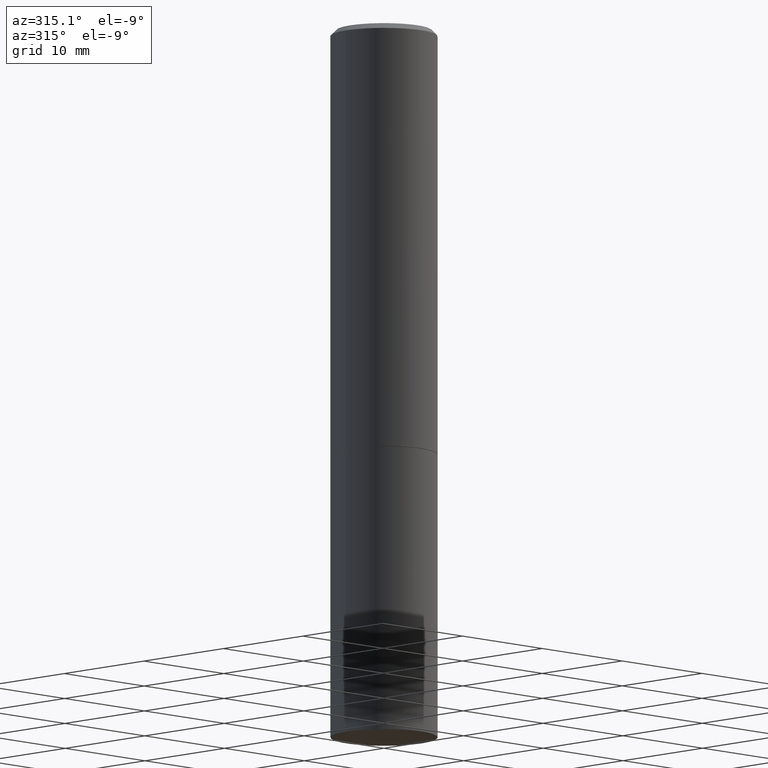
[diagram: clean part render]
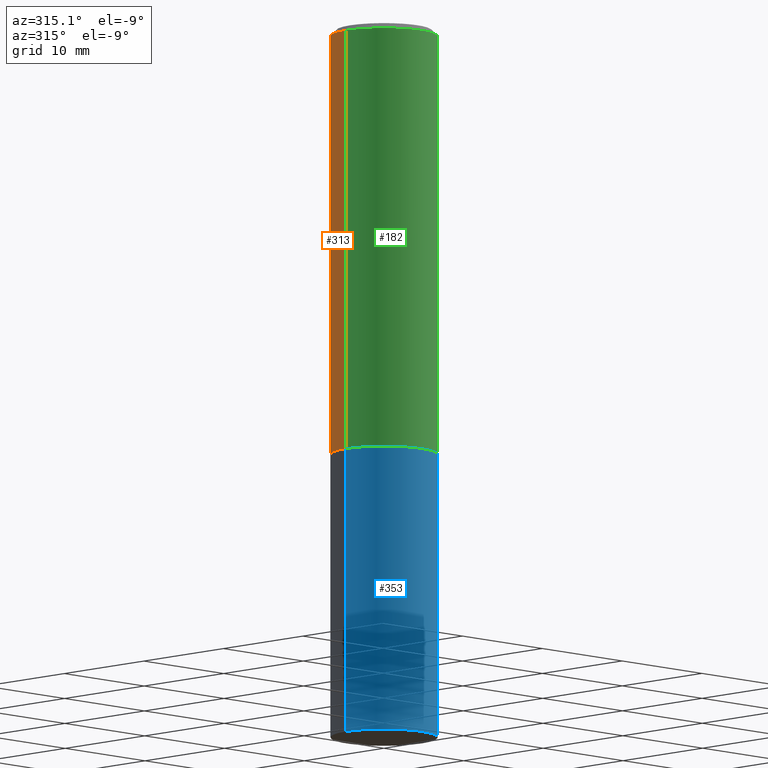
[diagram: same view with three faces highlighted in distinct colors, each labeled with its STEP entity id]
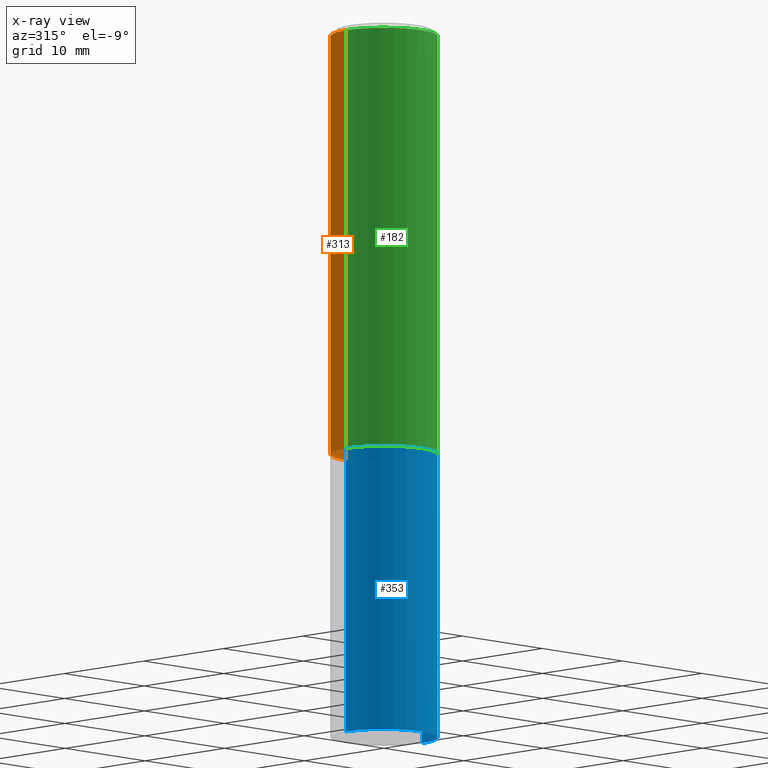
[diagram: x-ray of the same camera — body ghosted, the three highlighted faces saturated]
A machine part, auxiliary view with three faces highlighted in distinct colors.
The next image is the same camera in x-ray (body ghosted, the three faces saturated) — at least one of them is partly hidden behind the body in this view.
Their STEP definitions:

[orange] entity #313 — the highlighted cylindrical surface (partial cylindrical patch) has radius 4.7625 mm, axis along (-0, 0, 1).
#3 = EDGE_LOOP ( 'NONE', ( #309, #285, #302, #35 ) ) ;
#6 = CARTESIAN_POINT ( 'NONE',  ( 3.665757740471519853E-29, -5.233730526925875958E-15, -1.499000000000000110 ) ) ;
#17 = CARTESIAN_POINT ( 'NONE',  ( 0.000000000000000000, 0.000000000000000000, 0.000000000000000000 ) ) ;
#34 = EDGE_CURVE ( 'NONE', #147, #352, #159, .T. ) ;
#35 = ORIENTED_EDGE ( 'NONE', *, *, #172, .F. ) ;
#40 = CARTESIAN_POINT ( 'NONE',  ( -0.1874999999999998335, 1.239475875289310724E-15, -0.02000000000000004205 ) ) ;
#69 = VECTOR ( 'NONE', #273, 39.37007874015748143 ) ;
#133 = CARTESIAN_POINT ( 'NONE',  ( 4.890937612370283668E-31, -6.982962677686305168E-17, -0.02000000000000004205 ) ) ;
#136 = EDGE_CURVE ( 'NONE', #352, #141, #217, .T. ) ;
#141 = VERTEX_POINT ( 'NONE', #40 ) ;
#143 = AXIS2_PLACEMENT_3D ( 'NONE', #17, #168, #226 ) ;
#147 = VERTEX_POINT ( 'NONE', #295 ) ;
#159 = CIRCLE ( 'NONE', #359, 0.1875000000000000278 ) ;
#168 = DIRECTION ( 'NONE',  ( -2.445468806185136597E-29, 3.491481338843145583E-15, 1.000000000000000000 ) ) ;
#172 = EDGE_CURVE ( 'NONE', #147, #317, #189, .T. ) ;
#174 = DIRECTION ( 'NONE',  ( -2.445468806185136597E-29, 3.491481338843145583E-15, 1.000000000000000000 ) ) ;
#189 = LINE ( 'NONE', #293, #245 ) ;
#199 = CYLINDRICAL_SURFACE ( 'NONE', #143, 0.1874999999999999167 ) ;
#202 = CIRCLE ( 'NONE', #250, 0.1874999999999998335 ) ;
#211 = DIRECTION ( 'NONE',  ( 1.000000000000000000, -6.982962677686266711E-15, 0.000000000000000000 ) ) ;
#217 = LINE ( 'NONE', #327, #69 ) ;
#223 = EDGE_CURVE ( 'NONE', #317, #141, #202, .T. ) ;
#226 = DIRECTION ( 'NONE',  ( 1.000000000000000000, -6.982962677686265922E-15, 4.876176775795935793E-29 ) ) ;
#245 = VECTOR ( 'NONE', #331, 39.37007874015748143 ) ;
#250 = AXIS2_PLACEMENT_3D ( 'NONE', #133, #254, #356 ) ;
#254 = DIRECTION ( 'NONE',  ( -2.445468806185136597E-29, 3.491481338843145583E-15, 1.000000000000000000 ) ) ;
#264 = CARTESIAN_POINT ( 'NONE',  ( -0.1874999999999999722, -1.319512447301180399E-15, -1.499000000000000110 ) ) ;
#273 = DIRECTION ( 'NONE',  ( -2.445468806185136877E-29, 3.491481338843145188E-15, 1.000000000000000000 ) ) ;
#285 = ORIENTED_EDGE ( 'NONE', *, *, #136, .T. ) ;
#293 = CARTESIAN_POINT ( 'NONE',  ( 0.1874999999999999167, -1.309305502066174219E-15, 9.142831454617375408E-30 ) ) ;
#295 = CARTESIAN_POINT ( 'NONE',  ( 0.1875000000000000278, -6.543036028992050967E-15, -1.499000000000000110 ) ) ;
#302 = ORIENTED_EDGE ( 'NONE', *, *, #223, .F. ) ;
#309 = ORIENTED_EDGE ( 'NONE', *, *, #34, .T. ) ;
#313 = ADVANCED_FACE ( 'NONE', ( #361 ), #199, .T. ) ;
#317 = VERTEX_POINT ( 'NONE', #332 ) ;
#327 = CARTESIAN_POINT ( 'NONE',  ( -0.1874999999999999167, 1.332267629550187257E-15, -9.223003294227943787E-30 ) ) ;
#331 = DIRECTION ( 'NONE',  ( -2.445468806185136877E-29, 3.491481338843145188E-15, 1.000000000000000000 ) ) ;
#332 = CARTESIAN_POINT ( 'NONE',  ( 0.1874999999999998335, -1.356173001359024283E-15, -0.02000000000000004205 ) ) ;
#352 = VERTEX_POINT ( 'NONE', #264 ) ;
#356 = DIRECTION ( 'NONE',  ( 1.000000000000000000, -6.982962677686266711E-15, 0.000000000000000000 ) ) ;
#359 = AXIS2_PLACEMENT_3D ( 'NONE', #6, #174, #211 ) ;
#361 = FACE_OUTER_BOUND ( 'NONE', #3, .T. ) ;

[blue] entity #353 — the highlighted cylindrical surface (partial cylindrical patch) has radius 4.7625 mm, axis along (-0, 0, 1).
#12 = CARTESIAN_POINT ( 'NONE',  ( -0.1875000000000000278, -5.650695048136103317E-15, -2.500000000000000000 ) ) ;
#18 = DIRECTION ( 'NONE',  ( -2.445468806185136877E-29, 3.491481338843145188E-15, 1.000000000000000000 ) ) ;
#23 = CIRCLE ( 'NONE', #85, 0.1875000000000000278 ) ;
#27 = ORIENTED_EDGE ( 'NONE', *, *, #234, .T. ) ;
#31 = CARTESIAN_POINT ( 'NONE',  ( 0.000000000000000000, 0.000000000000000000, 0.000000000000000000 ) ) ;
#33 = DIRECTION ( 'NONE',  ( 1.000000000000000000, -6.982962677686265922E-15, 4.876176775795935793E-29 ) ) ;
#59 = ORIENTED_EDGE ( 'NONE', *, *, #71, .F. ) ;
#68 = DIRECTION ( 'NONE',  ( -2.445468806185136877E-29, 3.491481338843145188E-15, 1.000000000000000000 ) ) ;
#71 = EDGE_CURVE ( 'NONE', #310, #360, #23, .T. ) ;
#73 = DIRECTION ( 'NONE',  ( 1.000000000000000000, -6.982962677686266711E-15, 0.000000000000000000 ) ) ;
#74 = CARTESIAN_POINT ( 'NONE',  ( 6.113672015462842613E-29, -8.728703347107864943E-15, -2.500000000000000000 ) ) ;
#81 = CIRCLE ( 'NONE', #290, 0.1875000000000000278 ) ;
#82 = DIRECTION ( 'NONE',  ( 1.000000000000000000, -6.982962677686266711E-15, 0.000000000000000000 ) ) ;
#85 = AXIS2_PLACEMENT_3D ( 'NONE', #188, #218, #73 ) ;
#100 = CARTESIAN_POINT ( 'NONE',  ( -0.1875000000000000278, 1.332267629550188046E-15, -9.223003294227947991E-30 ) ) ;
#110 = VERTEX_POINT ( 'NONE', #12 ) ;
#115 = EDGE_CURVE ( 'NONE', #110, #310, #320, .T. ) ;
#126 = LINE ( 'NONE', #275, #129 ) ;
#129 = VECTOR ( 'NONE', #18, 39.37007874015748143 ) ;
#146 = EDGE_LOOP ( 'NONE', ( #258, #27, #286, #59 ) ) ;
#154 = EDGE_CURVE ( 'NONE', #341, #360, #126, .T. ) ;
#180 = CYLINDRICAL_SURFACE ( 'NONE', #326, 0.1875000000000000278 ) ;
#188 = CARTESIAN_POINT ( 'NONE',  ( 3.668203209277704895E-29, -5.237222008264718177E-15, -1.500000000000000222 ) ) ;
#195 = DIRECTION ( 'NONE',  ( -2.445468806185136597E-29, 3.491481338843145583E-15, 1.000000000000000000 ) ) ;
#210 = FACE_OUTER_BOUND ( 'NONE', #146, .T. ) ;
#218 = DIRECTION ( 'NONE',  ( -2.445468806185136597E-29, 3.491481338843145583E-15, 1.000000000000000000 ) ) ;
#231 = CARTESIAN_POINT ( 'NONE',  ( -0.1875000000000000278, -5.650695048136103317E-15, -1.500000000000000222 ) ) ;
#234 = EDGE_CURVE ( 'NONE', #110, #341, #81, .T. ) ;
#258 = ORIENTED_EDGE ( 'NONE', *, *, #115, .F. ) ;
#259 = CARTESIAN_POINT ( 'NONE',  ( 0.1875000000000000278, -1.003800884917403995E-14, -2.500000000000000000 ) ) ;
#275 = CARTESIAN_POINT ( 'NONE',  ( 0.1875000000000000278, -1.309305502066175008E-15, 9.142831454617381013E-30 ) ) ;
#286 = ORIENTED_EDGE ( 'NONE', *, *, #154, .T. ) ;
#287 = DIRECTION ( 'NONE',  ( -2.445468806185136597E-29, 3.491481338843145583E-15, 1.000000000000000000 ) ) ;
#290 = AXIS2_PLACEMENT_3D ( 'NONE', #74, #195, #82 ) ;
#310 = VERTEX_POINT ( 'NONE', #231 ) ;
#320 = LINE ( 'NONE', #100, #324 ) ;
#324 = VECTOR ( 'NONE', #68, 39.37007874015748143 ) ;
#326 = AXIS2_PLACEMENT_3D ( 'NONE', #31, #287, #33 ) ;
#341 = VERTEX_POINT ( 'NONE', #259 ) ;
#353 = ADVANCED_FACE ( 'NONE', ( #210 ), #180, .T. ) ;
#360 = VERTEX_POINT ( 'NONE', #364 ) ;
#364 = CARTESIAN_POINT ( 'NONE',  ( 0.1875000000000000278, -6.546527510330893974E-15, -1.500000000000000222 ) ) ;

[green] entity #182 — the highlighted cylindrical surface (partial cylindrical patch) has radius 4.7625 mm, axis along (-0, 0, 1).
#19 = DIRECTION ( 'NONE',  ( -2.445468806185136597E-29, 3.491481338843145583E-15, 1.000000000000000000 ) ) ;
#26 = DIRECTION ( 'NONE',  ( -2.445468806185136597E-29, 3.491481338843145583E-15, 1.000000000000000000 ) ) ;
#39 = AXIS2_PLACEMENT_3D ( 'NONE', #63, #124, #185 ) ;
#40 = CARTESIAN_POINT ( 'NONE',  ( -0.1874999999999998335, 1.239475875289310724E-15, -0.02000000000000004205 ) ) ;
#46 = DIRECTION ( 'NONE',  ( 1.000000000000000000, -6.982962677686265922E-15, 4.876176775795935793E-29 ) ) ;
#62 = EDGE_CURVE ( 'NONE', #352, #147, #365, .T. ) ;
#63 = CARTESIAN_POINT ( 'NONE',  ( 3.665757740471519853E-29, -5.233730526925875958E-15, -1.499000000000000110 ) ) ;
#69 = VECTOR ( 'NONE', #273, 39.37007874015748143 ) ;
#101 = AXIS2_PLACEMENT_3D ( 'NONE', #363, #19, #46 ) ;
#112 = FACE_OUTER_BOUND ( 'NONE', #366, .T. ) ;
#124 = DIRECTION ( 'NONE',  ( -2.445468806185136597E-29, 3.491481338843145583E-15, 1.000000000000000000 ) ) ;
#136 = EDGE_CURVE ( 'NONE', #352, #141, #217, .T. ) ;
#141 = VERTEX_POINT ( 'NONE', #40 ) ;
#147 = VERTEX_POINT ( 'NONE', #295 ) ;
#148 = ORIENTED_EDGE ( 'NONE', *, *, #62, .T. ) ;
#150 = CIRCLE ( 'NONE', #196, 0.1874999999999998335 ) ;
#169 = ORIENTED_EDGE ( 'NONE', *, *, #205, .F. ) ;
#172 = EDGE_CURVE ( 'NONE', #147, #317, #189, .T. ) ;
#182 = ADVANCED_FACE ( 'NONE', ( #112 ), #200, .T. ) ;
#185 = DIRECTION ( 'NONE',  ( 1.000000000000000000, -6.982962677686266711E-15, 0.000000000000000000 ) ) ;
#189 = LINE ( 'NONE', #293, #245 ) ;
#196 = AXIS2_PLACEMENT_3D ( 'NONE', #303, #26, #308 ) ;
#200 = CYLINDRICAL_SURFACE ( 'NONE', #101, 0.1874999999999999167 ) ;
#205 = EDGE_CURVE ( 'NONE', #141, #317, #150, .T. ) ;
#217 = LINE ( 'NONE', #327, #69 ) ;
#237 = ORIENTED_EDGE ( 'NONE', *, *, #172, .T. ) ;
#245 = VECTOR ( 'NONE', #331, 39.37007874015748143 ) ;
#264 = CARTESIAN_POINT ( 'NONE',  ( -0.1874999999999999722, -1.319512447301180399E-15, -1.499000000000000110 ) ) ;
#267 = ORIENTED_EDGE ( 'NONE', *, *, #136, .F. ) ;
#273 = DIRECTION ( 'NONE',  ( -2.445468806185136877E-29, 3.491481338843145188E-15, 1.000000000000000000 ) ) ;
#293 = CARTESIAN_POINT ( 'NONE',  ( 0.1874999999999999167, -1.309305502066174219E-15, 9.142831454617375408E-30 ) ) ;
#295 = CARTESIAN_POINT ( 'NONE',  ( 0.1875000000000000278, -6.543036028992050967E-15, -1.499000000000000110 ) ) ;
#303 = CARTESIAN_POINT ( 'NONE',  ( 4.890937612370283668E-31, -6.982962677686305168E-17, -0.02000000000000004205 ) ) ;
#308 = DIRECTION ( 'NONE',  ( 1.000000000000000000, -6.982962677686266711E-15, 0.000000000000000000 ) ) ;
#317 = VERTEX_POINT ( 'NONE', #332 ) ;
#327 = CARTESIAN_POINT ( 'NONE',  ( -0.1874999999999999167, 1.332267629550187257E-15, -9.223003294227943787E-30 ) ) ;
#331 = DIRECTION ( 'NONE',  ( -2.445468806185136877E-29, 3.491481338843145188E-15, 1.000000000000000000 ) ) ;
#332 = CARTESIAN_POINT ( 'NONE',  ( 0.1874999999999998335, -1.356173001359024283E-15, -0.02000000000000004205 ) ) ;
#352 = VERTEX_POINT ( 'NONE', #264 ) ;
#363 = CARTESIAN_POINT ( 'NONE',  ( 0.000000000000000000, 0.000000000000000000, 0.000000000000000000 ) ) ;
#365 = CIRCLE ( 'NONE', #39, 0.1875000000000000278 ) ;
#366 = EDGE_LOOP ( 'NONE', ( #267, #148, #237, #169 ) ) ;